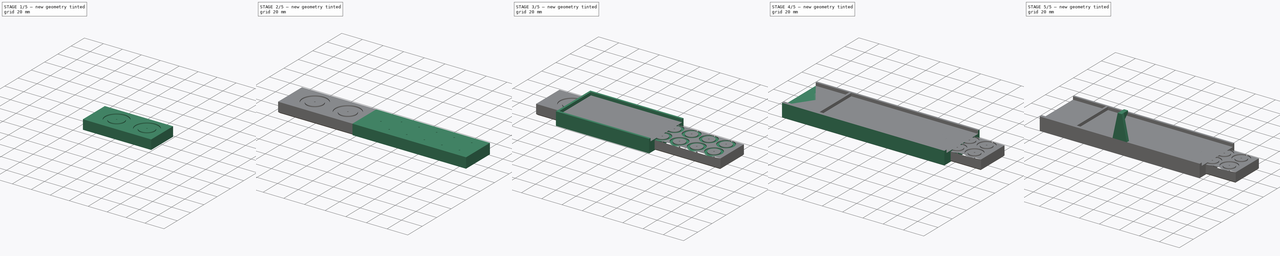
[diagram: build sequence overview — one tinted view per stage of 5, left to right]
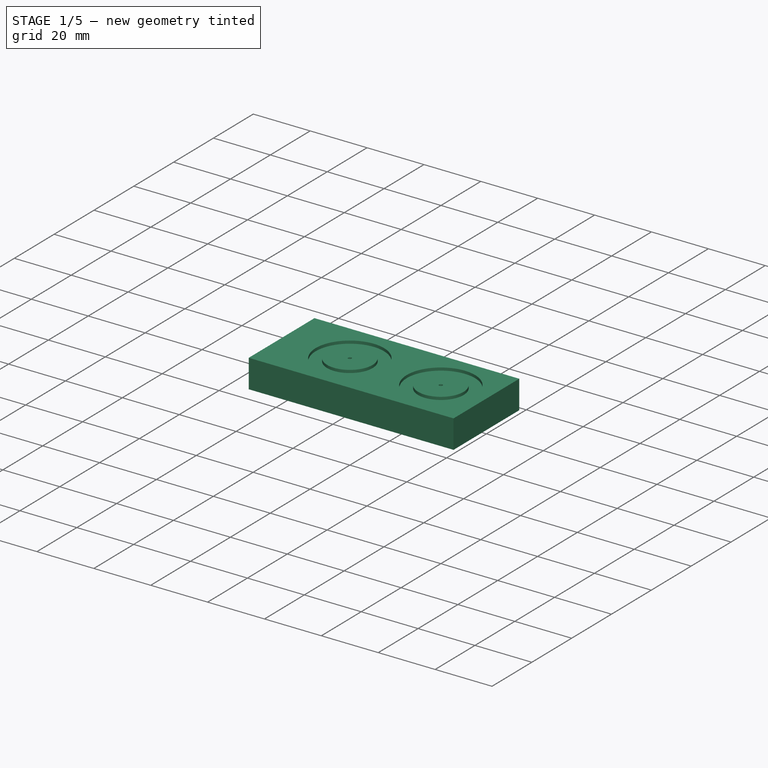
[diagram: stage 1 of 5 — iso view after this stage's code; geometry added in this stage tinted green]
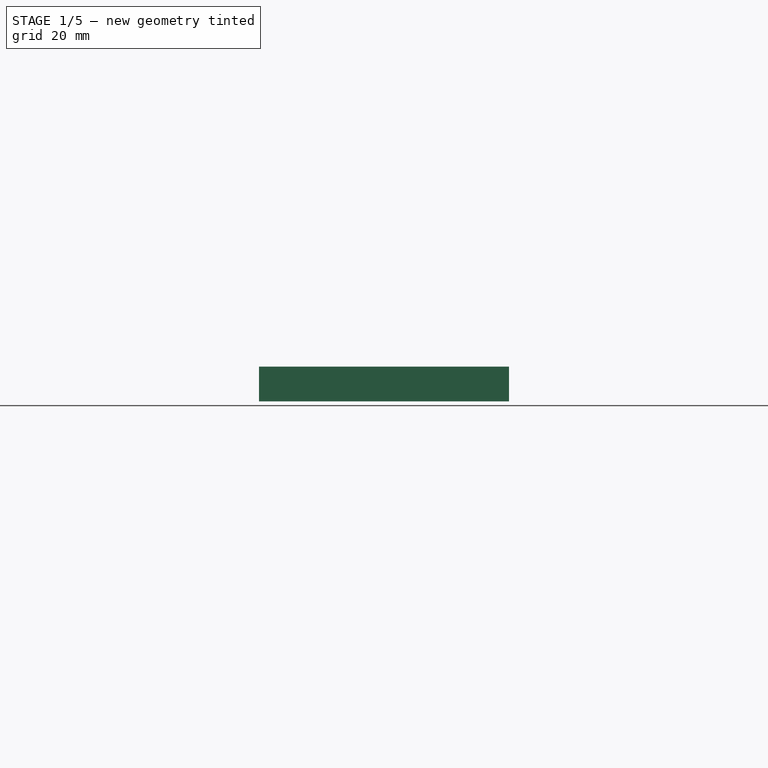
[diagram: stage 1 of 5 — front view after this stage's code; geometry added in this stage tinted green]
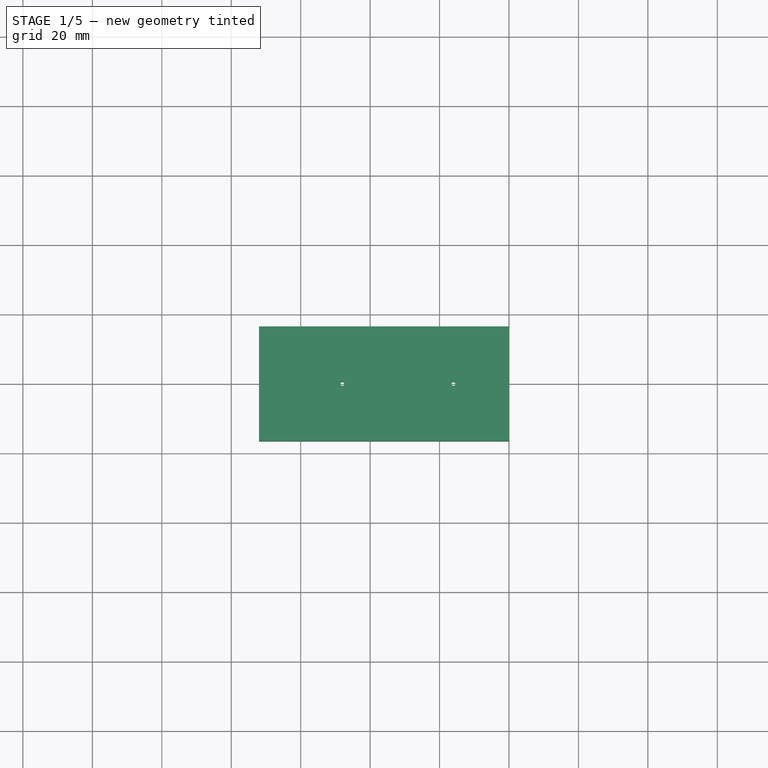
[diagram: stage 1 of 5 — top view after this stage's code; geometry added in this stage tinted green]
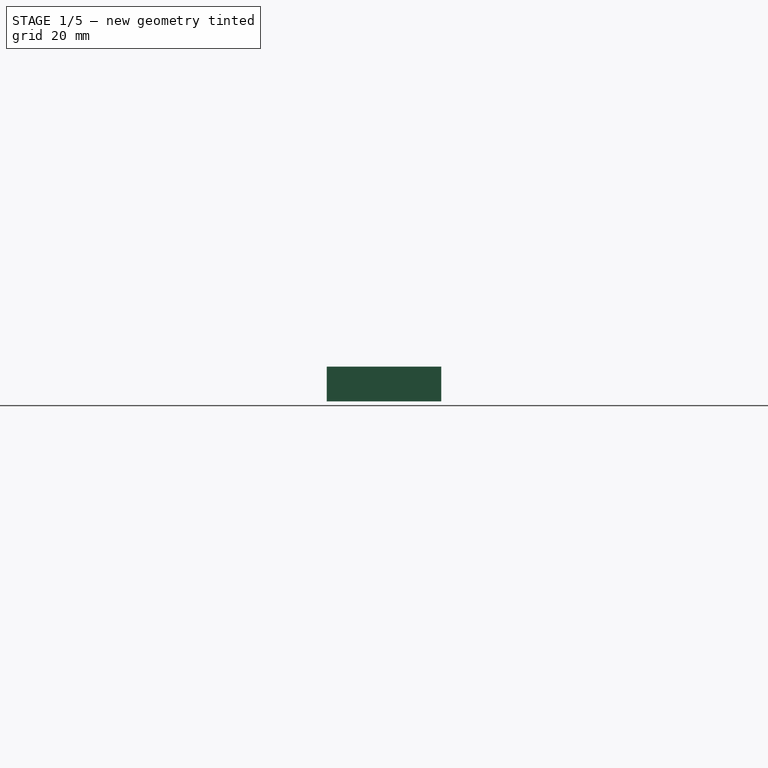
[diagram: stage 1 of 5 — right view after this stage's code; geometry added in this stage tinted green]
FCSTD DOCUMENT  (FreeCAD 1.0R39285 (Git))
Label: AuxPower1U-Template
License: All rights reserved
LicenseURL: https://en.wikipedia.org/wiki/All_rights_reserved
objects: Sketcher::SketchObject×14, PartDesign::Pad×8, PartDesign::Pocket×6, PartDesign::Body×4, PartDesign::Chamfer×2
note: 80 computed .brp shape members not serialized (recipe doc carries the construction recipe); baked Part::Feature solids carry a one-line shape summary decoded from their .brp

FEATURE [Sketcher::SketchObject] Sketch006  label="AcBlockSketch"
  ArcFitTolerance = 1e-06
  AttachmentSupport = -> [XY_Plane002]
  FullyConstrained = true
  MakeInternals = false
  MapMode = 5
  sketch-geometry (13):
    g0: LineSegment StartX=0 StartY=16.5 StartZ=0 EndX=-72 EndY=16.5 EndZ=0
    g1: LineSegment StartX=-72 StartY=16.5 StartZ=0 EndX=-72 EndY=-16.5 EndZ=0
    g2: LineSegment StartX=-72 StartY=-16.5 StartZ=0 EndX=0 EndY=-16.5 EndZ=0
    g3: LineSegment StartX=0 StartY=-16.5 StartZ=0 EndX=0 EndY=16.5 EndZ=0
    g4: LineSegment [constr] StartX=0 StartY=0 StartZ=0 EndX=-16 EndY=0 EndZ=0
    g5: LineSegment [constr] StartX=-16 StartY=0 StartZ=0 EndX=-48 EndY=0 EndZ=0
    g6: Circle [constr] CenterX=-16 CenterY=0 CenterZ=0 NormalX=0 NormalY=0 NormalZ=1 AngleXU=0 Radius=12
    g7: Circle [constr] CenterX=-16 CenterY=0 CenterZ=0 NormalX=0 NormalY=0 NormalZ=1 AngleXU=0 Radius=8
    g8: Circle CenterX=-16 CenterY=0 CenterZ=0 NormalX=0 NormalY=0 NormalZ=1 AngleXU=0 Radius=0.6
    g9: Circle [constr] CenterX=-48 CenterY=0 CenterZ=0 NormalX=0 NormalY=0 NormalZ=1 AngleXU=0 Radius=12
    g10: Circle [constr] CenterX=-48 CenterY=0 CenterZ=0 NormalX=0 NormalY=0 NormalZ=1 AngleXU=0 Radius=8
    g11: Circle CenterX=-48 CenterY=0 CenterZ=0 NormalX=0 NormalY=0 NormalZ=1 AngleXU=0 Radius=0.6
    g12: LineSegment [constr] StartX=-48 StartY=0 StartZ=0 EndX=-72 EndY=0 EndZ=0
  constraints (32):
    c: Coincident(g0,g1)
    c: Coincident(g1,g2)
    c: Coincident(g2,g3)
    c: Coincident(g3,g0)
    c: Horizontal(g0)
    c: Horizontal(g2)
    c: Vertical(g1)
    c: Vertical(g3)
    c: Symmetric(g0,g2,g-1)
    c: DistanceY(g3,g3) = 33
    c: Distance(g4) = 16
    c: Coincident(g4,g-1)
    c: PointOnObject(g4,g-1)
    c: Distance(g5) = 32
    c: Coincident(g5,g4)
    c: PointOnObject(g5,g-1)
    c: Diameter(g6) = 24
    c: Coincident(g6,g4)
    c: Diameter(g7) = 16
    c: Coincident(g7,g4)
    c: Coincident(g4,g8)
    c: Diameter(g8) = 1.2
    c: Coincident(g9,g5)
    c: Coincident(g10,g5)
    c: Coincident(g11,g5)
    c: Equal(g11,g8)
    c: Equal(g7,g10)
    c: Equal(g9,g6)
    c: Coincident(g12,g5)
    c: PointOnObject(g12,g-1)
    c: Vertical(g12,g1)
    c: DistanceX(g12,g12) = 24
FEATURE [PartDesign::Pad] Pad006  label="AcBlockPad"
  Direction = (0,0,1)
  Length = 10
  Length2 = 10
  Profile = -> Sketch006
  ReferenceAxis = -> Sketch006 [N_Axis]
  Refine = true
  Suppressed = false
  Type = 0
FEATURE [PartDesign::Body] Body001  label="Oled"
  AllowCompound = false
  Group = -> [Sketch004,Pad004,Sketch005,Pad005,Sketch011,Pocket003]
  Origin = -> Origin001
  Placement = pos=(50,-50,0) rot=(0,0,1;0rad)
  Tip = -> Pocket003
FEATURE [Sketcher::SketchObject] Sketch012  label="AcClearanceSketch"
  ArcFitTolerance = 1e-06
  AttachmentSupport = -> [Pad006]
  ExternalGeometry = -> [Pad006]
  FullyConstrained = true
  MakeInternals = false
  MapMode = 5
  Placement = pos=(0,0,10) rot=(0,0,1;0rad)
  sketch-geometry (4):
    g0: Circle CenterX=-16 CenterY=0 CenterZ=0 NormalX=0 NormalY=0 NormalZ=1 AngleXU=0 Radius=12
    g1: Circle CenterX=-16 CenterY=0 CenterZ=0 NormalX=0 NormalY=0 NormalZ=1 AngleXU=0 Radius=8
    g2: Circle CenterX=-48 CenterY=0 CenterZ=0 NormalX=0 NormalY=0 NormalZ=1 AngleXU=0 Radius=8
    g3: Circle CenterX=-48 CenterY=0 CenterZ=0 NormalX=0 NormalY=0 NormalZ=1 AngleXU=0 Radius=12
  constraints (8):
    c: Diameter(g0) = 24
    c: Coincident(g0,g-4)
    c: Diameter(g1) = 16
    c: Coincident(g1,g0)
    c: Coincident(g2,g-3)
    c: Coincident(g3,g2)
    c: Equal(g3,g0)
    c: Equal(g1,g2)
FEATURE [PartDesign::Pocket] Pocket004  label="AcClearancePocket"
  BaseFeature = -> Pad006
  Direction = (0,0,-1)
  Length = 1
  Length2 = 5
  Profile = -> Sketch012
  ReferenceAxis = -> Sketch012 [N_Axis]
  Refine = true
  Suppressed = false
  Type = 0
FEATURE [PartDesign::Body] Body003  label="DC"
  AllowCompound = false
  Group = -> [Sketch007,Pad007,Sketch008,Pocket,Sketch013,Pocket005,Chamfer]
  Origin = -> Origin003
  Placement = pos=(50,100,0) rot=(0,0,1;0rad)
  Tip = -> Chamfer
FEATURE [Sketcher::SketchObject] Sketch014  label="AcScrewKeepoutSketch"
  ArcFitTolerance = 1e-06
  AttachmentSupport = -> [Pocket004]
  FullyConstrained = true
  MakeInternals = false
  MapMode = 5
  Placement = pos=(-72,0,0) rot=(0.57735,-0.57735,-0.57735;2.0944rad)
  sketch-geometry (4):
    g0: LineSegment StartX=5 StartY=0 StartZ=0 EndX=5 EndY=4 EndZ=0
    g1: LineSegment StartX=5 StartY=4 StartZ=0 EndX=-5 EndY=4 EndZ=0
    g2: LineSegment StartX=-5 StartY=4 StartZ=0 EndX=-5 EndY=0 EndZ=0
    g3: LineSegment StartX=-5 StartY=0 StartZ=0 EndX=5 EndY=0 EndZ=0
  constraints (11):
    c: Coincident(g0,g1)
    c: Coincident(g1,g2)
    c: Coincident(g2,g3)
    c: Coincident(g3,g0)
    c: Vertical(g0)
    c: Vertical(g2)
    c: Horizontal(g1)
    c: Horizontal(g3)
    c: Distance(g0,g2) = 10
    c: Distance(g1,g3) = 4
    c: Symmetric(g2,g0,g-1)
FEATURE [PartDesign::Pocket] Pocket006  label="AcScrewKeepoutPocket"
  BaseFeature = -> Pocket004
  Direction = (1,0,0)
  Length = 8
  Length2 = 5
  Profile = -> Sketch014
  ReferenceAxis = -> Sketch014 [N_Axis]
  Refine = true
  Suppressed = false
  Type = 0
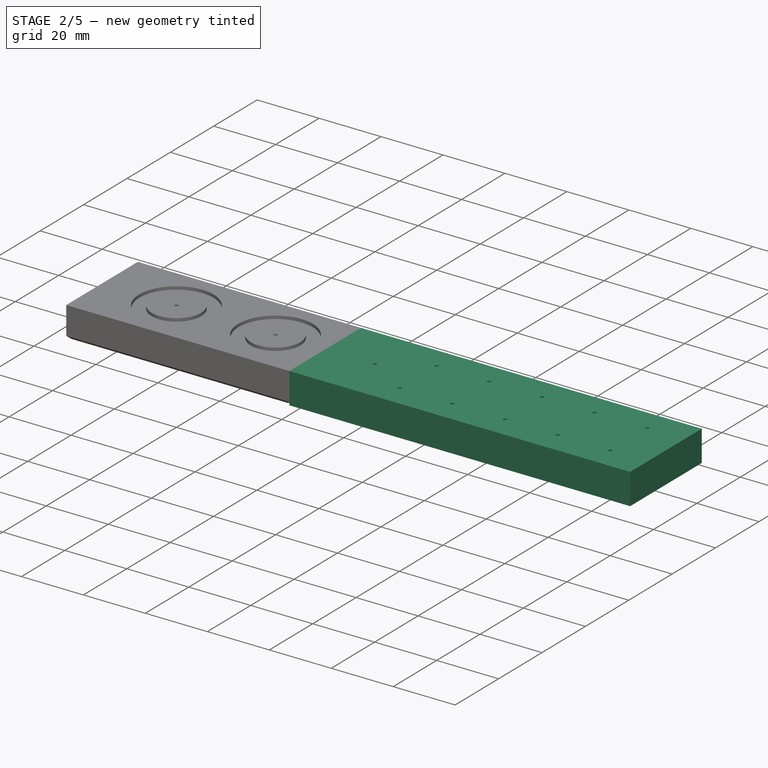
[diagram: stage 2 of 5 — iso view after this stage's code; geometry added in this stage tinted green]
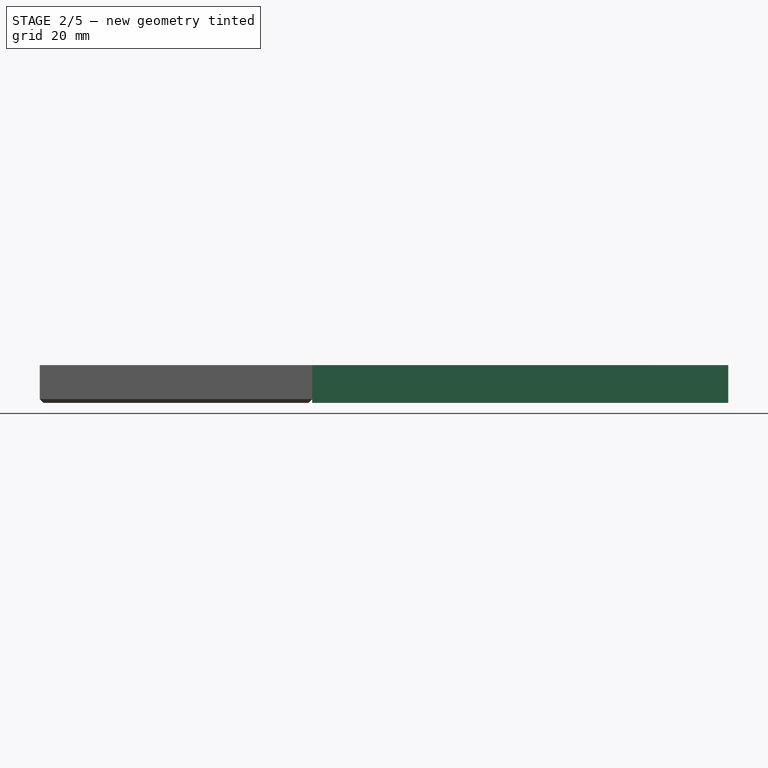
[diagram: stage 2 of 5 — front view after this stage's code; geometry added in this stage tinted green]
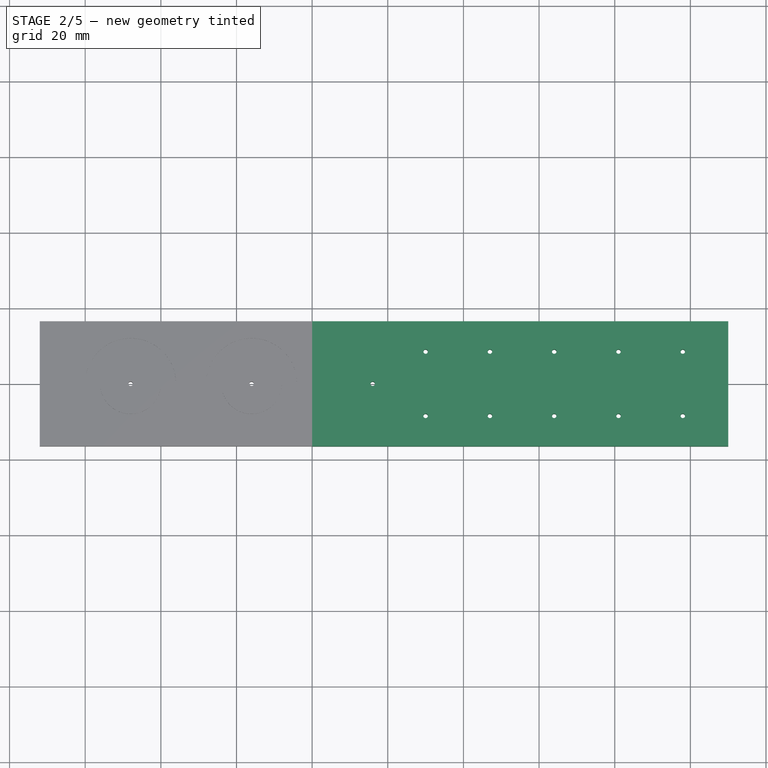
[diagram: stage 2 of 5 — top view after this stage's code; geometry added in this stage tinted green]
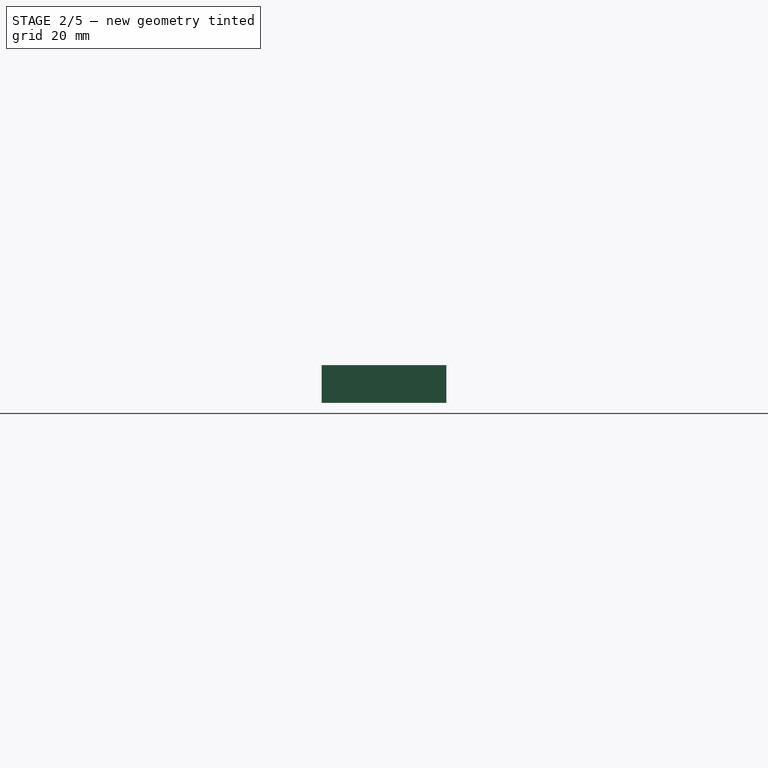
[diagram: stage 2 of 5 — right view after this stage's code; geometry added in this stage tinted green]
FEATURE [Sketcher::SketchObject] Sketch007  label="DcBlockSketch"
  ArcFitTolerance = 1e-06
  AttachmentSupport = -> [XY_Plane003]
  FullyConstrained = true
  MakeInternals = false
  MapMode = 5
  sketch-geometry (48):
    g0: LineSegment StartX=0 StartY=16.5 StartZ=0 EndX=0 EndY=-16.5 EndZ=0
    g1: LineSegment StartX=0 StartY=-16.5 StartZ=0 EndX=110 EndY=-16.5 EndZ=0
    g2: LineSegment StartX=110 StartY=-16.5 StartZ=0 EndX=110 EndY=16.5 EndZ=0
    g3: LineSegment StartX=110 StartY=16.5 StartZ=0 EndX=0 EndY=16.5 EndZ=0
    g4: LineSegment [constr] StartX=0 StartY=0 StartZ=0 EndX=16 EndY=0 EndZ=0
    g5: Circle [constr] CenterX=16 CenterY=0 CenterZ=0 NormalX=0 NormalY=0 NormalZ=1 AngleXU=0 Radius=6
    g6: Circle [constr] CenterX=16 CenterY=0 CenterZ=0 NormalX=0 NormalY=0 NormalZ=1 AngleXU=0 Radius=5
    g7: Circle CenterX=16 CenterY=0 CenterZ=0 NormalX=0 NormalY=0 NormalZ=1 AngleXU=0 Radius=0.6
    g8: LineSegment [constr] StartX=16 StartY=0 StartZ=0 EndX=30 EndY=0 EndZ=0
    g9: LineSegment [constr] StartX=30 StartY=8.5 StartZ=0 EndX=30 EndY=-8.5 EndZ=0
    g10: LineSegment [constr] StartX=30 StartY=0 StartZ=0 EndX=47 EndY=0 EndZ=0
    g11: LineSegment [constr] StartX=47 StartY=0 StartZ=0 EndX=64 EndY=0 EndZ=0
    g12: LineSegment [constr] StartX=64 StartY=0 StartZ=0 EndX=81 EndY=0 EndZ=0
    g13: LineSegment [constr] StartX=81 StartY=0 StartZ=0 EndX=98 EndY=0 EndZ=0
    g14: LineSegment [constr] StartX=47 StartY=8.5 StartZ=0 EndX=47 EndY=-8.5 EndZ=0
    g15: LineSegment [constr] StartX=64 StartY=8.5 StartZ=0 EndX=64 EndY=-8.5 EndZ=0
    g16: LineSegment [constr] StartX=81 StartY=8.5 StartZ=0 EndX=81 EndY=-8.5 EndZ=0
    g17: LineSegment [constr] StartX=98 StartY=8.5 StartZ=0 EndX=98 EndY=-8.5 EndZ=0
    g18: Circle [constr] CenterX=30 CenterY=8.5 CenterZ=0 NormalX=0 NormalY=0 NormalZ=1 AngleXU=0 Radius=8
    g19: Circle [constr] CenterX=30 CenterY=-8.5 CenterZ=0 NormalX=0 NormalY=0 NormalZ=1 AngleXU=0 Radius=8
    g20: Circle [constr] CenterX=47 CenterY=8.5 CenterZ=0 NormalX=0 NormalY=0 NormalZ=1 AngleXU=0 Radius=8
    g21: Circle [constr] CenterX=47 CenterY=-8.5 CenterZ=0 NormalX=0 NormalY=0 NormalZ=1 AngleXU=0 Radius=8
    g22: Circle [constr] CenterX=64 CenterY=-8.5 CenterZ=0 NormalX=0 NormalY=0 NormalZ=1 AngleXU=0 Radius=8
    g23: Circle [constr] CenterX=64 CenterY=8.5 CenterZ=0 NormalX=0 NormalY=0 NormalZ=1 AngleXU=0 Radius=8
    g24: Circle [constr] CenterX=81 CenterY=8.5 CenterZ=0 NormalX=0 NormalY=0 NormalZ=1 AngleXU=0 Radius=8
    g25: Circle [constr] CenterX=98 CenterY=8.5 CenterZ=0 NormalX=0 NormalY=0 NormalZ=1 AngleXU=0 Radius=8
    g26: Circle [constr] CenterX=98 CenterY=-8.5 CenterZ=0 NormalX=0 NormalY=0 NormalZ=1 AngleXU=0 Radius=8
    g27: Circle [constr] CenterX=81 CenterY=-8.5 CenterZ=0 NormalX=0 NormalY=0 NormalZ=1 AngleXU=0 Radius=8
    g28: Circle [constr] CenterX=30 CenterY=8.5 CenterZ=0 NormalX=0 NormalY=0 NormalZ=1 AngleXU=0 Radius=5.5
    g29: Circle [constr] CenterX=47 CenterY=8.5 CenterZ=0 NormalX=0 NormalY=0 NormalZ=1 AngleXU=0 Radius=5.5
    g30: Circle [constr] CenterX=64 CenterY=8.5 CenterZ=0 NormalX=0 NormalY=0 NormalZ=1 AngleXU=0 Radius=5.5
    g31: Circle [constr] CenterX=81 CenterY=8.5 CenterZ=0 NormalX=0 NormalY=0 NormalZ=1 AngleXU=0 Radius=5.5
    g32: Circle [constr] CenterX=98 CenterY=8.5 CenterZ=0 NormalX=0 NormalY=0 NormalZ=1 AngleXU=0 Radius=5.5
    g33: Circle [constr] CenterX=98 CenterY=-8.5 CenterZ=0 NormalX=0 NormalY=0 NormalZ=1 AngleXU=0 Radius=5.5
    g34: Circle [constr] CenterX=81 CenterY=-8.5 CenterZ=0 NormalX=0 NormalY=0 NormalZ=1 AngleXU=0 Radius=5.5
    g35: Circle [constr] CenterX=64 CenterY=-8.5 CenterZ=0 NormalX=0 NormalY=0 NormalZ=1 AngleXU=0 Radius=5.5
    g36: Circle [constr] CenterX=47 CenterY=-8.5 CenterZ=0 NormalX=0 NormalY=0 NormalZ=1 AngleXU=0 Radius=5.5
    g37: Circle [constr] CenterX=30 CenterY=-8.5 CenterZ=0 NormalX=0 NormalY=0 NormalZ=1 AngleXU=0 Radius=5.5
    g38: Circle CenterX=30 CenterY=8.5 CenterZ=0 NormalX=0 NormalY=0 NormalZ=1 AngleXU=0 Radius=0.6
    g39: Circle CenterX=47 CenterY=8.5 CenterZ=0 NormalX=0 NormalY=0 NormalZ=1 AngleXU=0 Radius=0.6
    g40: Circle CenterX=64 CenterY=8.5 CenterZ=0 NormalX=0 NormalY=0 NormalZ=1 AngleXU=0 Radius=0.6
    g41: Circle CenterX=81 CenterY=8.5 CenterZ=0 NormalX=0 NormalY=0 NormalZ=1 AngleXU=0 Radius=0.6
    g42: Circle CenterX=98 CenterY=8.5 CenterZ=0 NormalX=0 NormalY=0 NormalZ=1 AngleXU=0 Radius=0.6
    g43: Circle CenterX=30 CenterY=-8.5 CenterZ=0 NormalX=0 NormalY=0 NormalZ=1 AngleXU=0 Radius=0.6
    g44: Circle CenterX=47 CenterY=-8.5 CenterZ=0 NormalX=0 NormalY=0 NormalZ=1 AngleXU=0 Radius=0.6
    g45: Circle CenterX=64 CenterY=-8.5 CenterZ=0 NormalX=0 NormalY=0 NormalZ=1 AngleXU=0 Radius=0.6
    g46: Circle CenterX=81 CenterY=-8.5 CenterZ=0 NormalX=0 NormalY=0 NormalZ=1 AngleXU=0 Radius=0.6
    g47: Circle CenterX=98 CenterY=-8.5 CenterZ=0 NormalX=0 NormalY=0 NormalZ=1 AngleXU=0 Radius=0.6
  constraints (111):
    c: Coincident(g0,g1)
    c: Coincident(g1,g2)
    c: Coincident(g2,g3)
    c: Coincident(g3,g0)
    c: Vertical(g0)
    c: Vertical(g2)
    c: Horizontal(g1)
    c: Horizontal(g3)
    c: Symmetric(g0,g0,g-1)
    c: DistanceY(g0,g0) = 33
    c: Coincident(g4,g-1)
    c: PointOnObject(g4,g-1)
    c: DistanceX(g4,g4) = 16
    c: Diameter(g5) = 12
    c: Coincident(g5,g4)
    c: Diameter(g6) = 10
    c: Coincident(g6,g4)
    c: Coincident(g8,g7)
    c: PointOnObject(g8,g-1)
    c: Horizontal(g8)
    c: Vertical(g4,g7)
    c: DistanceX(g8,g8) = 14
    c: Vertical(g9)
    c: Symmetric(g9,g9,g8)
    c: Coincident(g10,g8)
    c: PointOnObject(g10,g-1)
    c: Coincident(g11,g10)
    c: PointOnObject(g11,g-1)
    c: Coincident(g12,g11)
    c: PointOnObject(g12,g-1)
    c: Coincident(g13,g12)
    c: PointOnObject(g13,g-1)
    c: Vertical(g14)
    c: Vertical(g15)
    c: Vertical(g16)
    c: Vertical(g17)
    c: Equal(g10,g11)
    c: Equal(g11,g12)
    c: Equal(g12,g13)
    c: Symmetric(g14,g14,g10)
    c: Equal(g14,g9)
    c: Symmetric(g15,g15,g11)
    c: Equal(g15,g14)
    c: Symmetric(g16,g16,g12)
    c: Equal(g16,g15)
    c: Symmetric(g17,g17,g13)
    c: Equal(g17,g16)
    c: DistanceY(g17,g17) = 17
    c: Diameter(g18) = 16
    c: Coincident(g18,g9)
    c: Coincident(g19,g9)
    c: Equal(g19,g18)
    c: Coincident(g20,g14)
    c: Coincident(g21,g14)
    c: Coincident(g22,g15)
    c: Coincident(g23,g15)
    c: Coincident(g24,g16)
    c: Coincident(g25,g17)
    c: Coincident(g26,g17)
    c: Coincident(g27,g16)
    c: Equal(g26,g27)
    c: Equal(g27,g22)
    c: Equal(g22,g21)
    c: Equal(g21,g19)
    c: Equal(g20,g18)
    c: Equal(g18,g23)
    c: Equal(g23,g24)
    c: Equal(g24,g25)
    c: Equal(g10,g17)
    c: Diameter(g28) = 11
    c: Coincident(g28,g9)
    c: Coincident(g29,g14)
    c: Coincident(g30,g15)
    c: Coincident(g31,g16)
    c: Coincident(g32,g17)
    c: Coincident(g33,g17)
    c: Coincident(g34,g16)
    c: Coincident(g35,g15)
    c: Coincident(g36,g14)
    c: Coincident(g37,g9)
    c: Equal(g28,g37)
    c: Equal(g37,g29)
    c: Equal(g29,g30)
    c: Equal(g30,g31)
    c: Equal(g31,g32)
    c: Equal(g37,g36)
    c: Equal(g36,g35)
    c: Equal(g35,g34)
    c: Equal(g34,g33)
    c: Diameter(g38) = 1.2
    c: Coincident(g38,g9)
    c: Coincident(g39,g14)
    c: Coincident(g40,g15)
    c: Coincident(g41,g16)
    c: Coincident(g42,g17)
    c: Equal(g42,g41)
    c: Equal(g41,g40)
    c: Equal(g40,g39)
    c: Equal(g39,g38)
    c: Coincident(g43,g9)
    c: Coincident(g44,g14)
    c: Coincident(g45,g15)
    c: Coincident(g46,g16)
    c: Coincident(g47,g17)
    c: Equal(g47,g46)
    c: Equal(g46,g45)
    c: Equal(g45,g44)
    c: Equal(g44,g43)
    c: Equal(g38,g43)
    c: Diameter(g7) = 1.2
    c: DistanceX(g1,g1) = 110
FEATURE [PartDesign::Pad] Pad007  label="DcBlockPad"
  Direction = (0,0,1)
  Length = 10
  Length2 = 10
  Profile = -> Sketch007
  ReferenceAxis = -> Sketch007 [N_Axis]
  Refine = true
  Suppressed = false
  Type = 0
FEATURE [Sketcher::SketchObject] Sketch008  label="DcScrewKeepoutSketch"
  ArcFitTolerance = 1e-06
  AttachmentSupport = -> [Pad007]
  FullyConstrained = true
  MakeInternals = false
  MapMode = 5
  Placement = pos=(0,0,0) rot=(0.57735,-0.57735,-0.57735;2.0944rad)
  sketch-geometry (4):
    g0: LineSegment StartX=-4 StartY=0 StartZ=0 EndX=4 EndY=0 EndZ=0
    g1: LineSegment StartX=4 StartY=0 StartZ=0 EndX=4 EndY=4 EndZ=0
    g2: LineSegment StartX=4 StartY=4 StartZ=0 EndX=-4 EndY=4 EndZ=0
    g3: LineSegment StartX=-4 StartY=4 StartZ=0 EndX=-4 EndY=0 EndZ=0
  constraints (11):
    c: Coincident(g0,g1)
    c: Coincident(g1,g2)
    c: Coincident(g2,g3)
    c: Coincident(g3,g0)
    c: Horizontal(g0)
    c: Horizontal(g2)
    c: Vertical(g1)
    c: Vertical(g3)
    c: DistanceY(g1,g1) = 4
    c: Symmetric(g0,g0,g-1)
    c: DistanceX(g0,g0) = 8
FEATURE [PartDesign::Pocket] Pocket  label="DcScrewKeepoutPocket"
  BaseFeature = -> Pad007
  Direction = (1,0,0)
  Length = 8
  Length2 = 5
  Profile = -> Sketch008
  ReferenceAxis = -> Sketch008 [N_Axis]
  Refine = true
  Suppressed = false
  Type = 0
FEATURE [PartDesign::Chamfer] Chamfer001
  Angle = 45
  Base = -> Pocket006 [Edge12,Edge8,Edge15,Edge6,Edge3]
  BaseFeature = -> Pocket006
  ChamferType = 0
  FlipDirection = false
  Refine = true
  Size = 1
  Size2 = 1
  SupportTransform = false
  Suppressed = false
  UseAllEdges = false
FEATURE [PartDesign::Body] Body002  label="AC"
  AllowCompound = false
  Group = -> [Sketch006,Pad006,Sketch014,Sketch012,Pocket004,Pocket006,Chamfer001]
  Origin = -> Origin002
  Placement = pos=(-50,50,0) rot=(0,0,1;0rad)
  Tip = -> Chamfer001
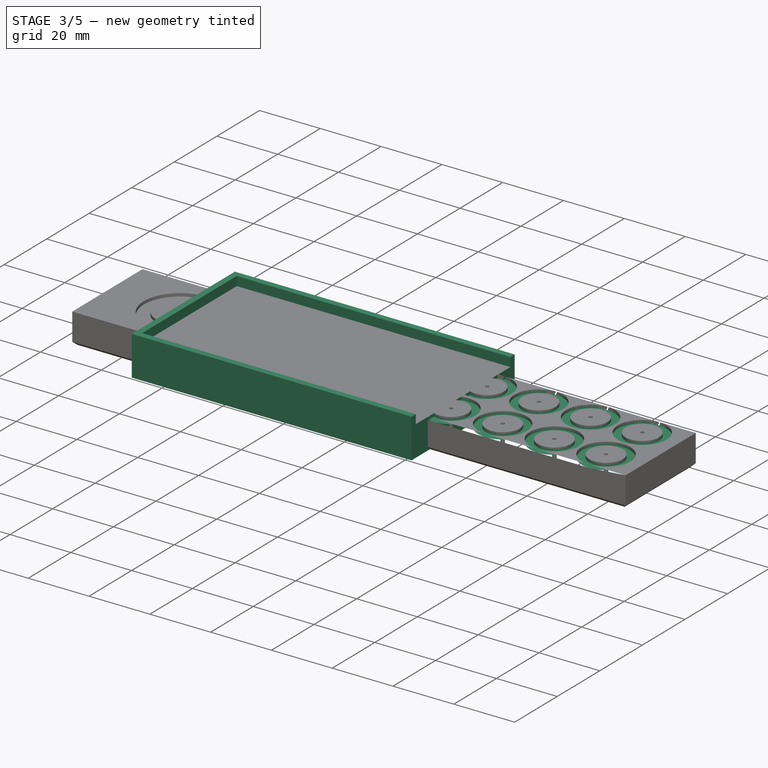
[diagram: stage 3 of 5 — iso view after this stage's code; geometry added in this stage tinted green]
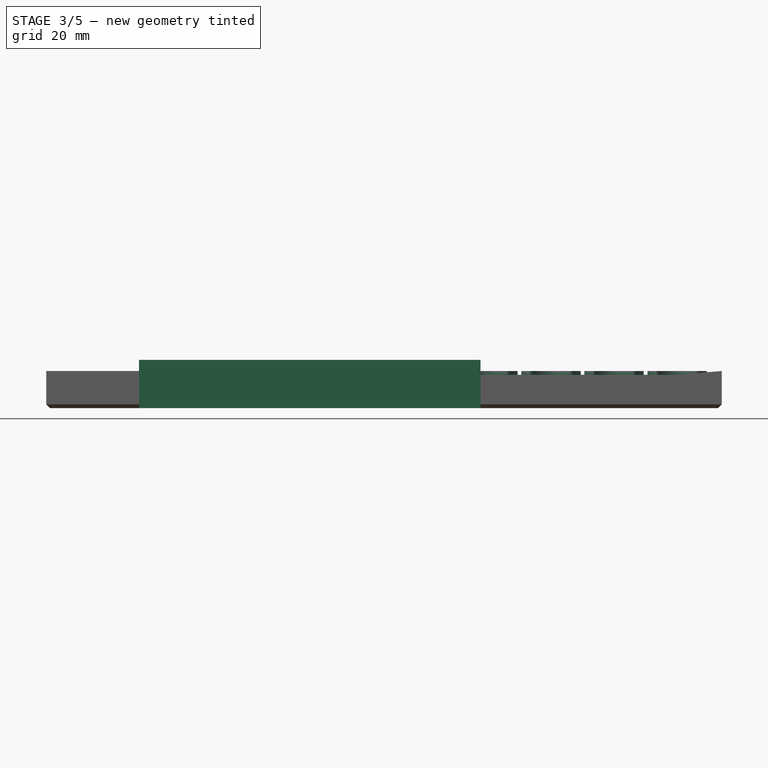
[diagram: stage 3 of 5 — front view after this stage's code; geometry added in this stage tinted green]
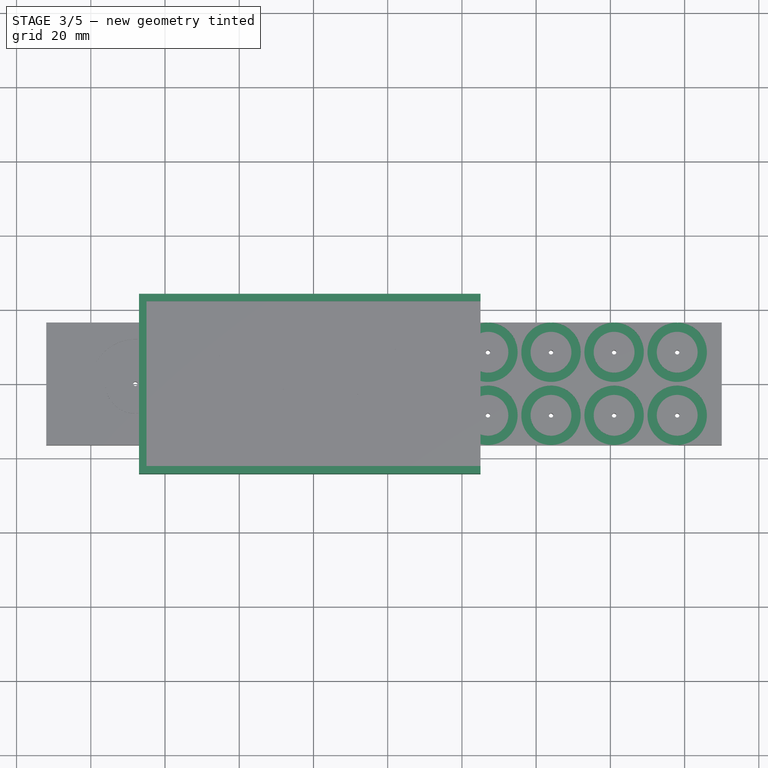
[diagram: stage 3 of 5 — top view after this stage's code; geometry added in this stage tinted green]
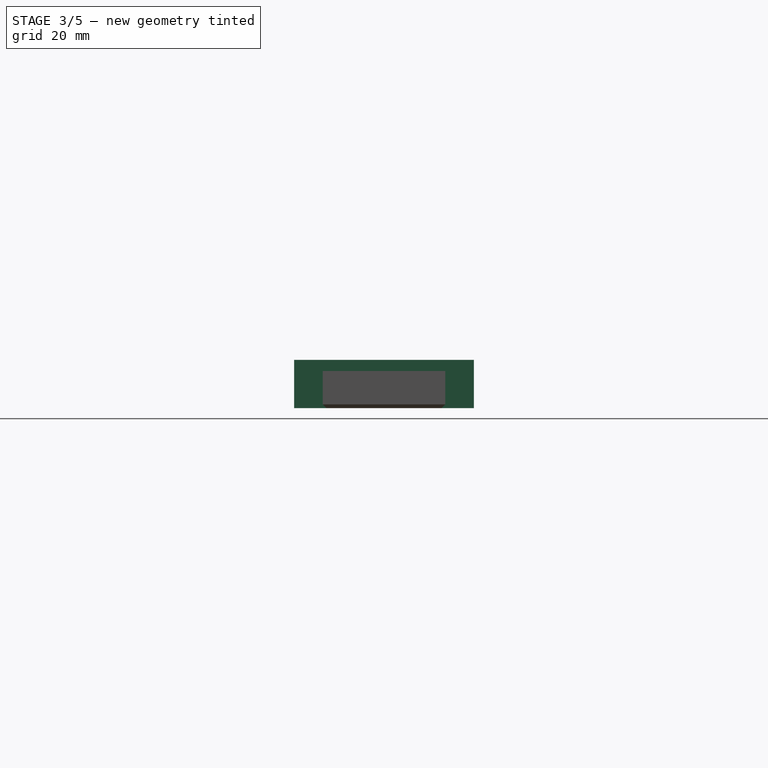
[diagram: stage 3 of 5 — right view after this stage's code; geometry added in this stage tinted green]
FEATURE [Sketcher::SketchObject] Sketch004  label="OledBlockSketch"
  ArcFitTolerance = 1e-06
  AttachmentSupport = -> [XY_Plane001]
  FullyConstrained = true
  MakeInternals = false
  MapMode = 5
  sketch-geometry (8):
    g0: LineSegment StartX=-45 StartY=22.225 StartZ=0 EndX=-45 EndY=-22.225 EndZ=0
    g1: LineSegment StartX=-45 StartY=-22.225 StartZ=0 EndX=45 EndY=-22.225 EndZ=0
    g2: LineSegment StartX=45 StartY=-22.225 StartZ=0 EndX=45 EndY=22.225 EndZ=0
    g3: LineSegment StartX=45 StartY=22.225 StartZ=0 EndX=-45 EndY=22.225 EndZ=0
    g4: LineSegment [constr] StartX=-45 StartY=22.225 StartZ=0 EndX=25 EndY=0 EndZ=0
    g5: LineSegment [constr] StartX=25 StartY=0 StartZ=0 EndX=-45 EndY=-22.225 EndZ=0
    g6: Circle [constr] CenterX=25 CenterY=0 CenterZ=0 NormalX=0 NormalY=0 NormalZ=1 AngleXU=0 Radius=8
    g7: Circle CenterX=25 CenterY=0 CenterZ=0 NormalX=0 NormalY=0 NormalZ=1 AngleXU=0 Radius=0.6
  constraints (20):
    c: Coincident(g0,g1)
    c: Coincident(g1,g2)
    c: Coincident(g2,g3)
    c: Coincident(g3,g0)
    c: Vertical(g0)
    c: Vertical(g2)
    c: Horizontal(g1)
    c: Horizontal(g3)
    c: Symmetric(g1,g0,g-1)
    c: DistanceX(g1,g1) = 90
    c: DistanceY(g0,g0) = 44.45
    c: Coincident(g4,g0)
    c: PointOnObject(g4,g-1)
    c: Coincident(g5,g4)
    c: Coincident(g5,g0)
    c: Coincident(g6,g4)
    c: Diameter(g6) = 16
    c: Diameter(g7) = 1.2
    c: Coincident(g7,g4)
    c: DistanceX(g0,g4) = 70
FEATURE [PartDesign::Pad] Pad004  label="OledBlockPad"
  Direction = (0,0,1)
  Length = 10
  Length2 = 10
  Profile = -> Sketch004
  ReferenceAxis = -> Sketch004 [N_Axis]
  Refine = true
  Suppressed = false
  Type = 0
FEATURE [Sketcher::SketchObject] Sketch005  label="OledSideSketch"
  ArcFitTolerance = 1e-06
  AttachmentSupport = -> [XY_Plane001]
  ExternalGeometry = -> [Pad004]
  FullyConstrained = true
  MakeInternals = false
  MapMode = 5
  sketch-geometry (9):
    g0: LineSegment StartX=45 StartY=-22.225 StartZ=0 EndX=45 EndY=-24.225 EndZ=0
    g1: LineSegment StartX=45 StartY=-24.225 StartZ=0 EndX=-47 EndY=-24.225 EndZ=0
    g2: LineSegment StartX=-47 StartY=-24.225 StartZ=0 EndX=-47 EndY=24.225 EndZ=0
    g3: LineSegment StartX=45 StartY=22.225 StartZ=0 EndX=45 EndY=24.225 EndZ=0
    g4: LineSegment StartX=-47 StartY=24.225 StartZ=0 EndX=45 EndY=24.225 EndZ=0
    g5: LineSegment StartX=45 StartY=22.225 StartZ=0 EndX=-45 EndY=22.225 EndZ=0
    g6: LineSegment StartX=-45 StartY=22.225 StartZ=0 EndX=-45 EndY=-22.225 EndZ=0
    g7: LineSegment StartX=-45 StartY=-22.225 StartZ=0 EndX=45 EndY=-22.225 EndZ=0
    g8: LineSegment [constr] StartX=-45 StartY=22.225 StartZ=0 EndX=-47 EndY=22.225 EndZ=0
  constraints (23):
    c: Coincident(g0,g-4)
    c: Vertical(g0)
    c: Coincident(g1,g0)
    c: Horizontal(g1)
    c: Coincident(g2,g1)
    c: Vertical(g2)
    c: Coincident(g3,g-3)
    c: Vertical(g3)
    c: Equal(g3,g0)
    c: DistanceY(g0,g0) = 2
    c: Horizontal(g3,g2)
    c: Coincident(g4,g2)
    c: Coincident(g4,g3)
    c: Coincident(g5,g3)
    c: Coincident(g5,g-3)
    c: Coincident(g6,g5)
    c: Coincident(g6,g-4)
    c: Coincident(g7,g6)
    c: Coincident(g7,g0)
    c: Coincident(g8,g5)
    c: PointOnObject(g8,g2)
    c: Horizontal(g8)
    c: Equal(g8,g0)
FEATURE [PartDesign::Pad] Pad005  label="OledSidePad"
  BaseFeature = -> Pad004
  Direction = (0,0,1)
  Length = 13
  Length2 = 10
  Profile = -> Sketch005
  ReferenceAxis = -> Sketch005 [N_Axis]
  Refine = true
  Suppressed = false
  Type = 0
FEATURE [Sketcher::SketchObject] Sketch013  label="DcClearanceSketch"
  ArcFitTolerance = 1e-06
  AttachmentSupport = -> [Pocket]
  ExternalGeometry = -> [Pocket]
  FullyConstrained = true
  MakeInternals = false
  MapMode = 5
  Placement = pos=(0,0,10) rot=(0,0,1;0rad)
  sketch-geometry (22):
    g0: Circle CenterX=16 CenterY=0 CenterZ=0 NormalX=0 NormalY=0 NormalZ=1 AngleXU=0 Radius=5
    g1: Circle CenterX=16 CenterY=0 CenterZ=0 NormalX=0 NormalY=0 NormalZ=1 AngleXU=0 Radius=6
    g2: Circle CenterX=98 CenterY=8.5 CenterZ=0 NormalX=0 NormalY=0 NormalZ=1 AngleXU=0 Radius=5.5
    g3: Circle CenterX=98 CenterY=-8.5 CenterZ=0 NormalX=0 NormalY=0 NormalZ=1 AngleXU=0 Radius=5.5
    g4: Circle CenterX=81 CenterY=-8.5 CenterZ=0 NormalX=0 NormalY=0 NormalZ=1 AngleXU=0 Radius=5.5
    g5: Circle CenterX=81 CenterY=8.5 CenterZ=0 NormalX=0 NormalY=0 NormalZ=1 AngleXU=0 Radius=5.5
    g6: Circle CenterX=64 CenterY=8.5 CenterZ=0 NormalX=0 NormalY=0 NormalZ=1 AngleXU=0 Radius=5.5
    g7: Circle CenterX=47 CenterY=8.5 CenterZ=0 NormalX=0 NormalY=0 NormalZ=1 AngleXU=0 Radius=5.5
    g8: Circle CenterX=30 CenterY=8.5 CenterZ=0 NormalX=0 NormalY=0 NormalZ=1 AngleXU=0 Radius=5.5
    g9: Circle CenterX=30 CenterY=-8.5 CenterZ=0 NormalX=0 NormalY=0 NormalZ=1 AngleXU=0 Radius=5.5
    g10: Circle CenterX=47 CenterY=-8.5 CenterZ=0 NormalX=0 NormalY=0 NormalZ=1 AngleXU=0 Radius=5.5
    g11: Circle CenterX=64 CenterY=-8.5 CenterZ=0 NormalX=0 NormalY=0 NormalZ=1 AngleXU=0 Radius=5.5
    g12: Circle CenterX=98 CenterY=8.5 CenterZ=0 NormalX=0 NormalY=0 NormalZ=1 AngleXU=0 Radius=8
    g13: Circle CenterX=98 CenterY=-8.5 CenterZ=0 NormalX=0 NormalY=0 NormalZ=1 AngleXU=0 Radius=8
    g14: Circle CenterX=81 CenterY=-8.5 CenterZ=0 NormalX=0 NormalY=0 NormalZ=1 AngleXU=0 Radius=8
    g15: Circle CenterX=81 CenterY=8.5 CenterZ=0 NormalX=0 NormalY=0 NormalZ=1 AngleXU=0 Radius=8
    g16: Circle CenterX=64 CenterY=8.5 CenterZ=0 NormalX=0 NormalY=0 NormalZ=1 AngleXU=0 Radius=8
    g17: Circle CenterX=64 CenterY=-8.5 CenterZ=0 NormalX=0 NormalY=0 NormalZ=1 AngleXU=0 Radius=8
    g18: Circle CenterX=47 CenterY=-8.5 CenterZ=0 NormalX=0 NormalY=0 NormalZ=1 AngleXU=0 Radius=8
    g19: Circle CenterX=30 CenterY=-8.5 CenterZ=0 NormalX=0 NormalY=0 NormalZ=1 AngleXU=0 Radius=8
    g20: Circle CenterX=30 CenterY=8.5 CenterZ=0 NormalX=0 NormalY=0 NormalZ=1 AngleXU=0 Radius=8
    g21: Circle CenterX=47 CenterY=8.5 CenterZ=0 NormalX=0 NormalY=0 NormalZ=1 AngleXU=0 Radius=8
  constraints (44):
    c: Diameter(g1) = 12
    c: Diameter(g0) = 10
    c: Coincident(g1,g0)
    c: Coincident(g0,g-3)
    c: Diameter(g2) = 11
    c: Coincident(g2,g-12)
    c: Coincident(g3,g-13)
    c: Coincident(g4,g-10)
    c: Coincident(g5,g-11)
    c: Coincident(g6,g-8)
    c: Coincident(g7,g-7)
    c: Coincident(g8,g-4)
    c: Coincident(g9,g-5)
    c: Coincident(g10,g-6)
    c: Coincident(g11,g-9)
    c: Equal(g3,g2)
    c: Equal(g2,g5)
    c: Equal(g5,g4)
    c: Equal(g4,g11)
    c: Equal(g11,g6)
    c: Equal(g6,g10)
    c: Equal(g10,g7)
    c: Equal(g7,g8)
    c: Equal(g8,g9)
    c: Diameter(g12) = 16
    c: Coincident(g12,g2)
    c: Coincident(g13,g3)
    c: Coincident(g14,g4)
    c: Coincident(g15,g5)
    c: Coincident(g16,g6)
    c: Coincident(g17,g11)
    c: Coincident(g18,g10)
    c: Coincident(g19,g9)
    c: Coincident(g20,g8)
    c: Coincident(g21,g7)
    c: Equal(g20,g21)
    c: Equal(g21,g16)
    c: Equal(g16,g15)
    c: Equal(g15,g12)
    c: Equal(g13,g14)
    c: Equal(g14,g17)
    c: Equal(g17,g18)
    c: Equal(g18,g19)
    c: Equal(g19,g12)
FEATURE [PartDesign::Pocket] Pocket005  label="DcClearancePocket"
  BaseFeature = -> Pocket
  Direction = (0,0,-1)
  Length = 1
  Length2 = 5
  Profile = -> Sketch013
  ReferenceAxis = -> Sketch013 [N_Axis]
  Refine = true
  Suppressed = false
  Type = 0
FEATURE [PartDesign::Chamfer] Chamfer
  Angle = 45
  Base = -> Pocket005 [Edge5,Edge1,Edge11,Edge10,Edge9]
  BaseFeature = -> Pocket005
  ChamferType = 0
  FlipDirection = false
  Refine = true
  Size = 1
  Size2 = 1
  SupportTransform = false
  Suppressed = false
  UseAllEdges = false
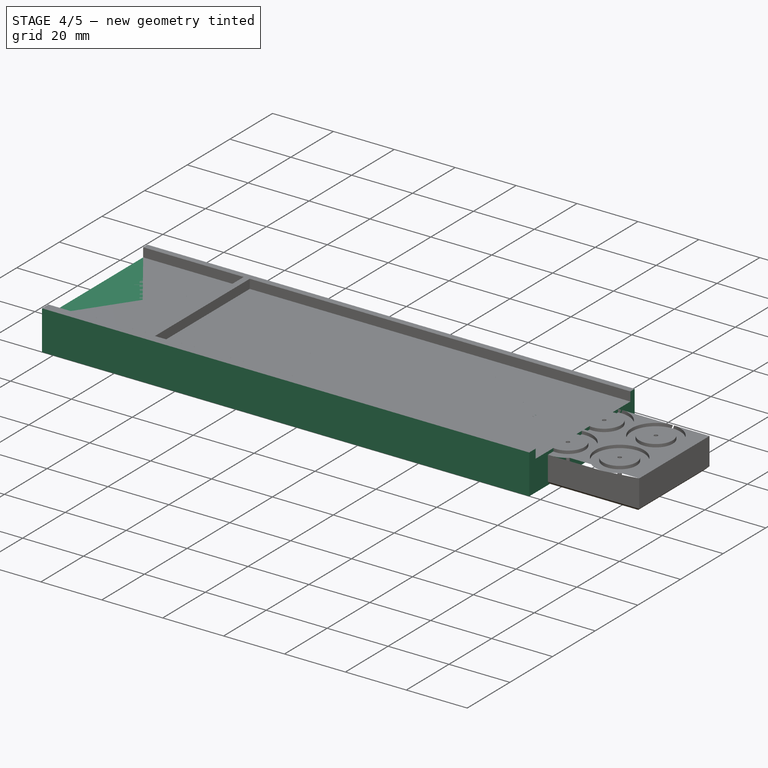
[diagram: stage 4 of 5 — iso view after this stage's code; geometry added in this stage tinted green]
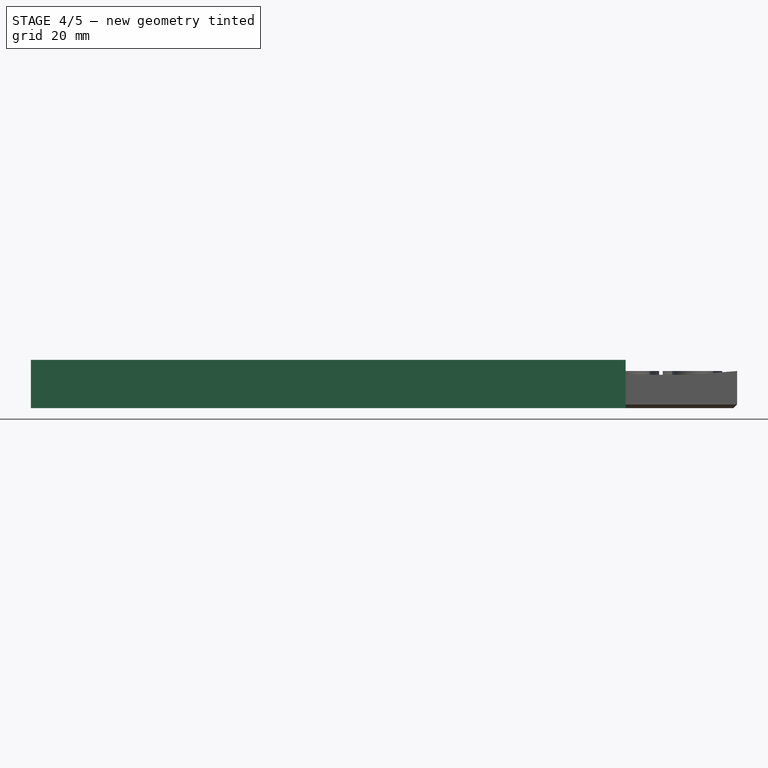
[diagram: stage 4 of 5 — front view after this stage's code; geometry added in this stage tinted green]
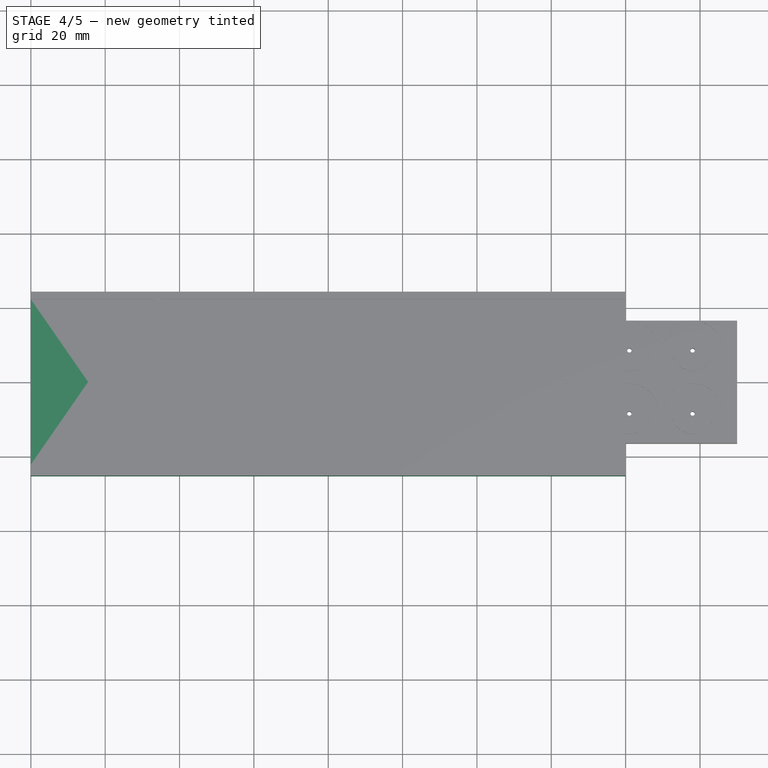
[diagram: stage 4 of 5 — top view after this stage's code; geometry added in this stage tinted green]
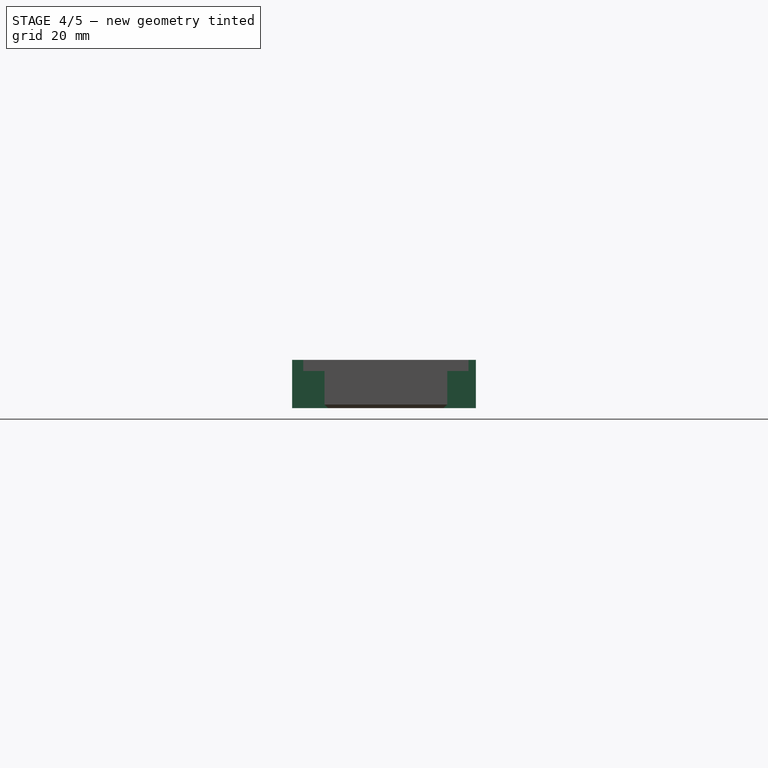
[diagram: stage 4 of 5 — right view after this stage's code; geometry added in this stage tinted green]
FEATURE [Sketcher::SketchObject] Sketch  label="ButtonsBlockSketch"
  ArcFitTolerance = 1e-06
  AttachmentSupport = -> [XY_Plane]
  FullyConstrained = true
  MakeInternals = false
  MapMode = 5
  sketch-geometry (23):
    g0: LineSegment StartX=-80 StartY=22.225 StartZ=0 EndX=-80 EndY=-22.225 EndZ=0
    g1: LineSegment StartX=-80 StartY=-22.225 StartZ=0 EndX=80 EndY=-22.225 EndZ=0
    g2: LineSegment StartX=80 StartY=-22.225 StartZ=0 EndX=80 EndY=22.225 EndZ=0
    g3: LineSegment StartX=80 StartY=22.225 StartZ=0 EndX=-80 EndY=22.225 EndZ=0
    g4: LineSegment [constr] StartX=0 StartY=0 StartZ=0 EndX=-32 EndY=0 EndZ=0
    g5: LineSegment [constr] StartX=-32 StartY=0 StartZ=0 EndX=-64 EndY=0 EndZ=0
    g6: LineSegment [constr] StartX=0 StartY=0 StartZ=0 EndX=32 EndY=0 EndZ=0
    g7: LineSegment [constr] StartX=32 StartY=0 StartZ=0 EndX=64 EndY=0 EndZ=0
    g8: Circle [constr] CenterX=-64 CenterY=0 CenterZ=0 NormalX=0 NormalY=0 NormalZ=1 AngleXU=0 Radius=12
    g9: Circle [constr] CenterX=-32 CenterY=0 CenterZ=0 NormalX=0 NormalY=0 NormalZ=1 AngleXU=0 Radius=12
    g10: Circle [constr] CenterX=0 CenterY=0 CenterZ=0 NormalX=0 NormalY=0 NormalZ=1 AngleXU=0 Radius=12
    g11: Circle [constr] CenterX=32 CenterY=0 CenterZ=0 NormalX=0 NormalY=0 NormalZ=1 AngleXU=0 Radius=12
    g12: Circle [constr] CenterX=64 CenterY=0 CenterZ=0 NormalX=0 NormalY=0 NormalZ=1 AngleXU=0 Radius=12
    g13: Circle [constr] CenterX=64 CenterY=0 CenterZ=0 NormalX=0 NormalY=0 NormalZ=1 AngleXU=0 Radius=8
    g14: Circle [constr] CenterX=32 CenterY=0 CenterZ=0 NormalX=0 NormalY=0 NormalZ=1 AngleXU=0 Radius=8
    g15: Circle [constr] CenterX=0 CenterY=0 CenterZ=0 NormalX=0 NormalY=0 NormalZ=1 AngleXU=0 Radius=8
    g16: Circle [constr] CenterX=-32 CenterY=0 CenterZ=0 NormalX=0 NormalY=0 NormalZ=1 AngleXU=0 Radius=8
    g17: Circle [constr] CenterX=-64 CenterY=0 CenterZ=0 NormalX=0 NormalY=0 NormalZ=1 AngleXU=0 Radius=8
    g18: Circle CenterX=-64 CenterY=0 CenterZ=0 NormalX=0 NormalY=0 NormalZ=1 AngleXU=0 Radius=0.6
    g19: Circle CenterX=-32 CenterY=0 CenterZ=0 NormalX=0 NormalY=0 NormalZ=1 AngleXU=0 Radius=0.6
    g20: Circle CenterX=0 CenterY=0 CenterZ=0 NormalX=0 NormalY=0 NormalZ=1 AngleXU=0 Radius=0.6
    g21: Circle CenterX=32 CenterY=0 CenterZ=0 NormalX=0 NormalY=0 NormalZ=1 AngleXU=0 Radius=0.6
    g22: Circle CenterX=64 CenterY=0 CenterZ=0 NormalX=0 NormalY=0 NormalZ=1 AngleXU=0 Radius=0.6
  constraints (53):
    c: Coincident(g0,g1)
    c: Coincident(g1,g2)
    c: Coincident(g2,g3)
    c: Coincident(g3,g0)
    c: Vertical(g0)
    c: Vertical(g2)
    c: Horizontal(g1)
    c: Horizontal(g3)
    c: Symmetric(g1,g0,g-1)
    c: DistanceX(g1,g1) = 160
    c: DistanceY(g0,g0) = 44.45
    c: Coincident(g4,g-1)
    c: PointOnObject(g4,g-1)
    c: Coincident(g5,g4)
    c: PointOnObject(g5,g-1)
    c: Coincident(g6,g4)
    c: PointOnObject(g6,g-1)
    c: Coincident(g7,g6)
    c: PointOnObject(g7,g-1)
    c: DistanceX(g5,g5) = 32
    c: Equal(g5,g4)
    c: Equal(g7,g6)
    c: Equal(g6,g4)
    c: Diameter(g8) = 24
    c: Coincident(g8,g5)
    c: Coincident(g9,g4)
    c: Coincident(g10,g4)
    c: Coincident(g11,g6)
    c: Coincident(g12,g7)
    c: Coincident(g13,g7)
    c: Coincident(g14,g6)
    c: Coincident(g15,g4)
    c: Coincident(g16,g4)
    c: Coincident(g17,g5)
    c: Diameter(g15) = 16
    c: Equal(g16,g17)
    c: Equal(g17,g15)
    c: Equal(g15,g14)
    c: Equal(g14,g13)
    c: Equal(g8,g9)
    c: Equal(g9,g10)
    c: Equal(g10,g11)
    c: Equal(g11,g12)
    c: Coincident(g18,g5)
    c: Coincident(g19,g4)
    c: Coincident(g20,g4)
    c: Coincident(g21,g6)
    c: Coincident(g22,g7)
    c: Equal(g22,g21)
    c: Equal(g21,g20)
    c: Equal(g20,g19)
    c: Equal(g19,g18)
    c: Diameter(g20) = 1.2
FEATURE [PartDesign::Pad] Pad  label="ButtonsBlockPad"
  Direction = (0,0,1)
  Length = 10
  Length2 = 10
  Profile = -> Sketch
  ReferenceAxis = -> Sketch [N_Axis]
  Refine = true
  Suppressed = false
  Type = 0
FEATURE [Sketcher::SketchObject] Sketch001  label="ButtonSideSketch"
  ArcFitTolerance = 1e-06
  AttachmentSupport = -> [XY_Plane]
  ExternalGeometry = -> [Pad]
  FullyConstrained = true
  MakeInternals = false
  MapMode = 5
  sketch-geometry (8):
    g0: LineSegment StartX=-80 StartY=-22.225 StartZ=0 EndX=-80 EndY=-25.225 EndZ=0
    g1: LineSegment StartX=-80 StartY=-25.225 StartZ=0 EndX=80 EndY=-25.225 EndZ=0
    g2: LineSegment StartX=80 StartY=-25.225 StartZ=0 EndX=80 EndY=-22.225 EndZ=0
    g3: LineSegment StartX=80 StartY=-22.225 StartZ=0 EndX=-80 EndY=-22.225 EndZ=0
    g4: LineSegment StartX=80 StartY=22.225 StartZ=0 EndX=80 EndY=24.225 EndZ=0
    g5: LineSegment StartX=80 StartY=24.225 StartZ=0 EndX=-80 EndY=24.225 EndZ=0
    g6: LineSegment StartX=-80 StartY=24.225 StartZ=0 EndX=-80 EndY=22.225 EndZ=0
    g7: LineSegment StartX=-80 StartY=22.225 StartZ=0 EndX=80 EndY=22.225 EndZ=0
  constraints (22):
    c: Coincident(g0,g1)
    c: Coincident(g1,g2)
    c: Coincident(g2,g3)
    c: Coincident(g3,g0)
    c: Vertical(g0)
    c: Vertical(g2)
    c: Horizontal(g1)
    c: Horizontal(g3)
    c: Coincident(g0,g-4)
    c: Coincident(g4,g5)
    c: Coincident(g5,g6)
    c: Coincident(g6,g7)
    c: Coincident(g7,g4)
    c: Vertical(g4)
    c: Vertical(g6)
    c: Horizontal(g5)
    c: Horizontal(g7)
    c: Coincident(g4,g-3)
    c: Vertical(g5,g-3)
    c: DistanceY(g6,g6) = 2
    c: DistanceY(g0,g0) = 3
    c: Vertical(g-4,g1)
FEATURE [PartDesign::Pad] Pad001  label="ButtonsSidePad"
  BaseFeature = -> Pad
  Direction = (0,0,1)
  Length = 13
  Length2 = 10
  Profile = -> Sketch001
  ReferenceAxis = -> Sketch001 [N_Axis]
  Refine = true
  Suppressed = false
  Type = 0
FEATURE [PartDesign::Body] Body  label="Buttons"
  AllowCompound = false
  Group = -> [Sketch,Pad,Sketch001,Pad001,Sketch002,Pad002,Sketch003,Pad003,Sketch010,Pocket002]
  Origin = -> Origin
  Placement = pos=(-100,-100,0) rot=(0,0,1;0rad)
  Tip = -> Pocket002
FEATURE [Sketcher::SketchObject] Sketch011  label="OledClearanceSketch"
  ArcFitTolerance = 1e-06
  AttachmentSupport = -> [Pad005]
  ExternalGeometry = -> [Pad005]
  FullyConstrained = true
  MakeInternals = false
  MapMode = 5
  Placement = pos=(0,0,0) rot=(1,0,0;3.14159rad)
  sketch-geometry (2):
    g0: Circle CenterX=25 CenterY=0 CenterZ=0 NormalX=0 NormalY=0 NormalZ=1 AngleXU=0 Radius=12
    g1: Circle CenterX=25 CenterY=0 CenterZ=0 NormalX=0 NormalY=0 NormalZ=1 AngleXU=0 Radius=8
  constraints (4):
    c: Diameter(g0) = 24
    c: Coincident(g0,g-3)
    c: Diameter(g1) = 16
    c: Coincident(g1,g0)
FEATURE [PartDesign::Pocket] Pocket003  label="OledClearancePocket"
  BaseFeature = -> Pad005
  Direction = (0,0,1)
  Length = 1
  Length2 = 5
  Profile = -> Sketch011
  ReferenceAxis = -> Sketch011 [N_Axis]
  Refine = true
  Suppressed = false
  Type = 0
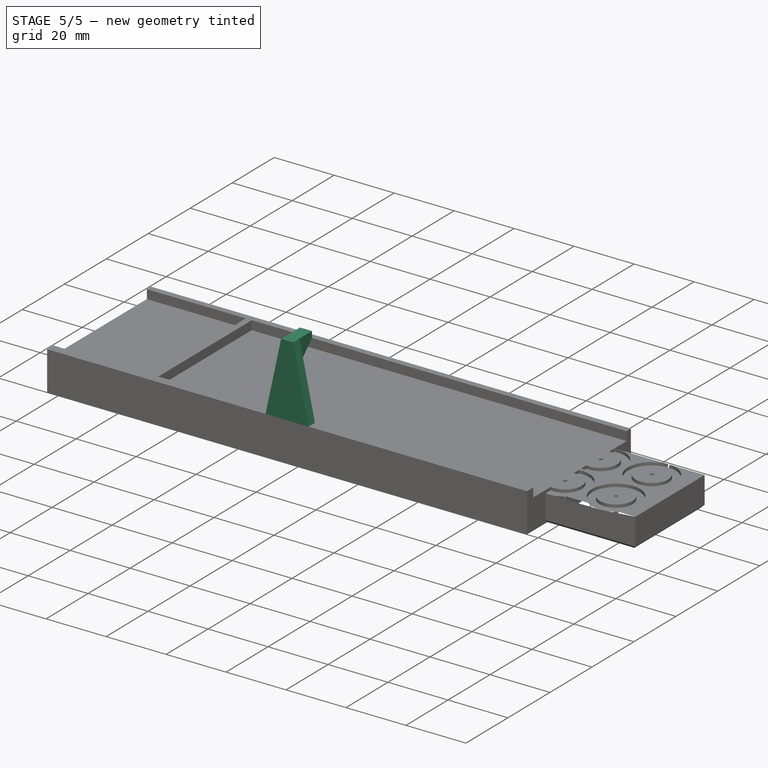
[diagram: stage 5 of 5 — iso view after this stage's code; geometry added in this stage tinted green]
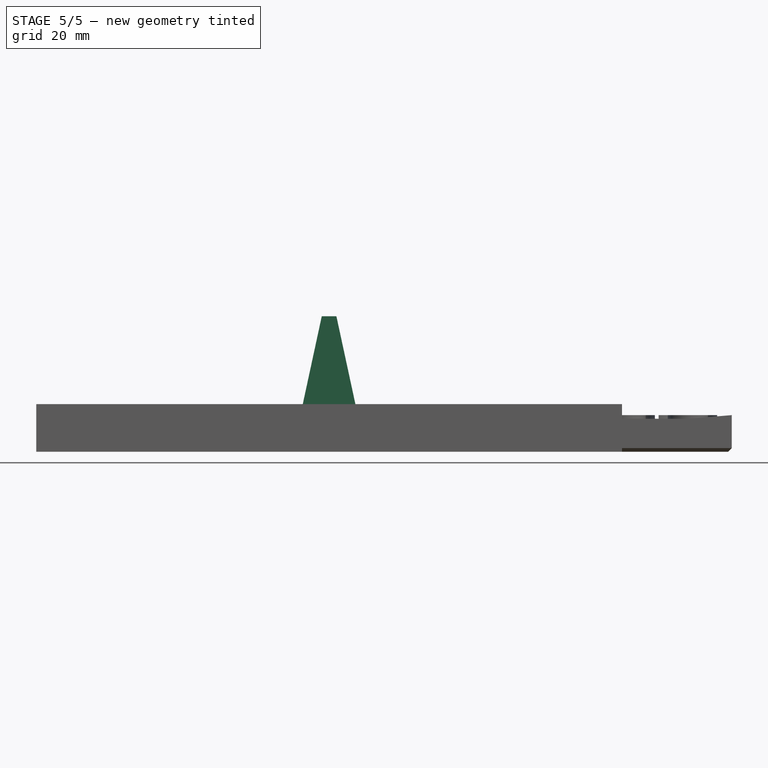
[diagram: stage 5 of 5 — front view after this stage's code; geometry added in this stage tinted green]
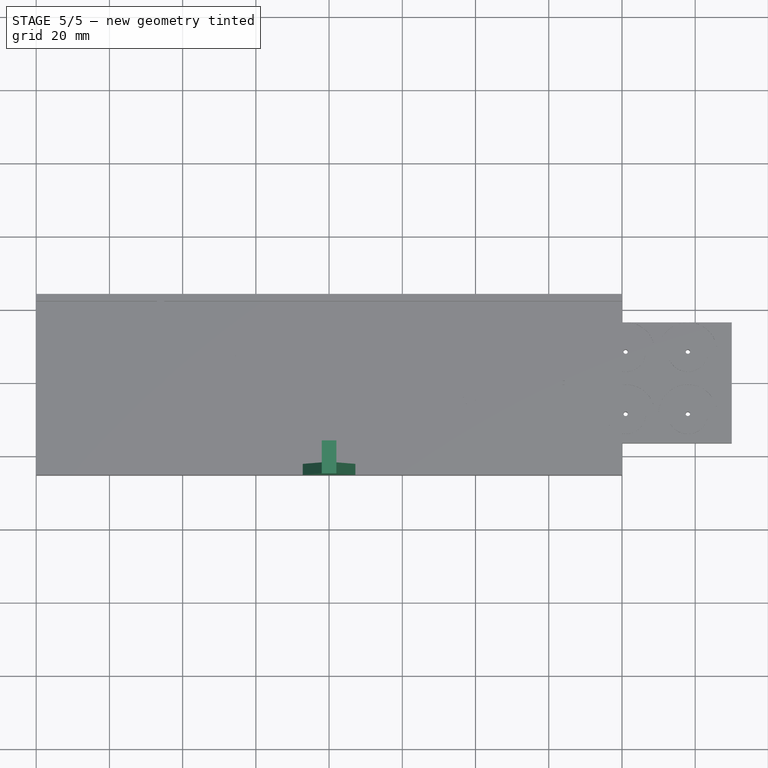
[diagram: stage 5 of 5 — top view after this stage's code; geometry added in this stage tinted green]
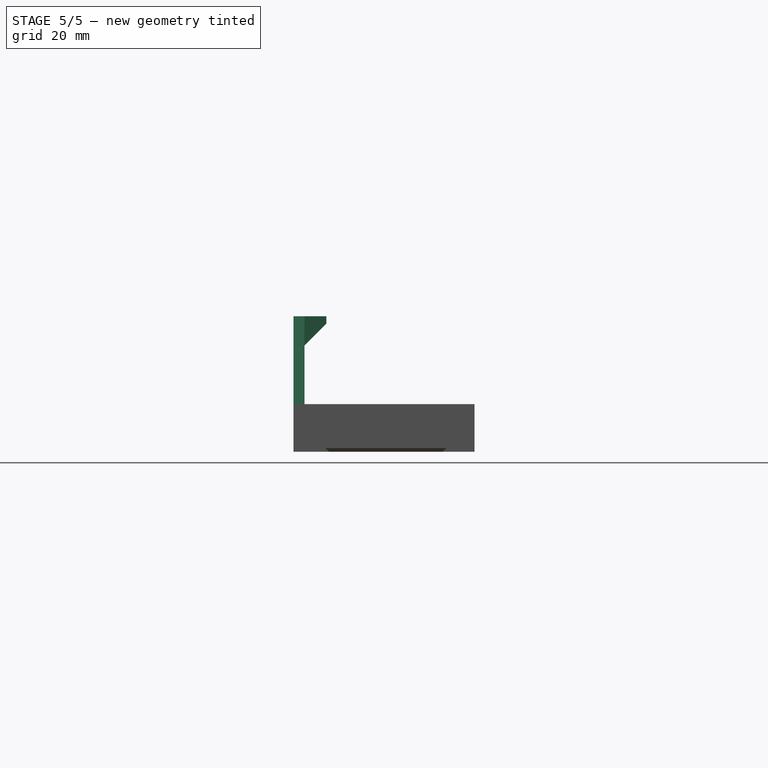
[diagram: stage 5 of 5 — right view after this stage's code; geometry added in this stage tinted green]
FEATURE [Sketcher::SketchObject] Sketch002  label="ButtonCenteringsSketch"
  ArcFitTolerance = 1e-06
  AttachmentSupport = -> [Pad001]
  FullyConstrained = true
  MakeInternals = false
  MapMode = 5
  Placement = pos=(0,-25.225,0) rot=(1,0,0;1.5708rad)
  sketch-geometry (4):
    g0: LineSegment StartX=-10 StartY=0 StartZ=0 EndX=10 EndY=-3.574e-13 EndZ=0
    g1: LineSegment StartX=2 StartY=37 StartZ=0 EndX=-2 EndY=37 EndZ=0
    g2: LineSegment StartX=10 StartY=-3.574e-13 StartZ=0 EndX=2 EndY=37 EndZ=0
    g3: LineSegment StartX=-2 StartY=37 StartZ=0 EndX=-10 EndY=0 EndZ=0
  constraints (11):
    c: PointOnObject(g0,g-1)
    c: Symmetric(g0,g0,g-1)
    c: DistanceX(g0,g0) = 20
    c: Horizontal(g1)
    c: Coincident(g2,g0)
    c: Coincident(g2,g1)
    c: Coincident(g3,g1)
    c: Coincident(g3,g0)
    c: Equal(g2,g3)
    c: DistanceY(g2,g2) = 37
    c: DistanceX(g1,g1) = 4
FEATURE [PartDesign::Pad] Pad002  label="ButtonCenteringsPad"
  BaseFeature = -> Pad001
  Direction = (0,-1,2e-16)
  Length = 3
  Length2 = 10
  Profile = -> Sketch002
  ReferenceAxis = -> Sketch002 [N_Axis]
  Refine = true
  Reversed = true
  Suppressed = false
  Type = 0
FEATURE [Sketcher::SketchObject] Sketch003  label="ButtonsNotchSketch"
  ArcFitTolerance = 1e-06
  AttachmentSupport = -> [YZ_Plane]
  ExternalGeometry = -> [Pad002]
  FullyConstrained = true
  MakeInternals = false
  MapMode = 5
  Placement = pos=(0,0,0) rot=(0.57735,0.57735,0.57735;2.0944rad)
  sketch-geometry (4):
    g0: LineSegment StartX=-22.225 StartY=37 StartZ=0 EndX=-16.225 EndY=37 EndZ=0
    g1: LineSegment StartX=-22.225 StartY=37 StartZ=0 EndX=-22.225 EndY=29 EndZ=0
    g2: LineSegment StartX=-16.225 StartY=37 StartZ=0 EndX=-16.225 EndY=35 EndZ=0
    g3: LineSegment StartX=-16.225 StartY=35 StartZ=0 EndX=-22.225 EndY=29 EndZ=0
  constraints (11):
    c: Coincident(g0,g-3)
    c: Horizontal(g0)
    c: Coincident(g1,g0)
    c: Vertical(g1)
    c: Coincident(g2,g0)
    c: Vertical(g2)
    c: Coincident(g3,g2)
    c: Coincident(g3,g1)
    c: DistanceY(g1,g1) = 8
    c: DistanceX(g0,g0) = 6
    c: Angle(g3,g1) = 0.785398
FEATURE [PartDesign::Pad] Pad003  label="ButtonsNotchPad"
  BaseFeature = -> Pad002
  Direction = (1,0,0)
  Length = 4
  Length2 = 10
  Midplane = true
  Profile = -> Sketch003
  ReferenceAxis = -> Sketch003 [N_Axis]
  Refine = true
  Suppressed = false
  Type = 0
FEATURE [Sketcher::SketchObject] Sketch010  label="ButtonsClearanceSketch"
  ArcFitTolerance = 1e-06
  AttachmentSupport = -> [Pad003]
  ExternalGeometry = -> [Pad003]
  FullyConstrained = true
  MakeInternals = false
  MapMode = 5
  Placement = pos=(0,0,0) rot=(1,0,0;3.14159rad)
  sketch-geometry (10):
    g0: Circle CenterX=64 CenterY=0 CenterZ=0 NormalX=0 NormalY=0 NormalZ=1 AngleXU=0 Radius=12
    g1: Circle CenterX=32 CenterY=0 CenterZ=0 NormalX=0 NormalY=0 NormalZ=1 AngleXU=0 Radius=12
    g2: Circle CenterX=0 CenterY=0 CenterZ=0 NormalX=0 NormalY=0 NormalZ=1 AngleXU=0 Radius=12
    g3: Circle CenterX=-32 CenterY=0 CenterZ=0 NormalX=0 NormalY=0 NormalZ=1 AngleXU=0 Radius=12
    g4: Circle CenterX=-64 CenterY=0 CenterZ=0 NormalX=0 NormalY=0 NormalZ=1 AngleXU=0 Radius=12
    g5: Circle CenterX=64 CenterY=0 CenterZ=0 NormalX=0 NormalY=0 NormalZ=1 AngleXU=0 Radius=8
    g6: Circle CenterX=32 CenterY=0 CenterZ=0 NormalX=0 NormalY=0 NormalZ=1 AngleXU=0 Radius=8
    g7: Circle CenterX=0 CenterY=0 CenterZ=0 NormalX=0 NormalY=0 NormalZ=1 AngleXU=0 Radius=8
    g8: Circle CenterX=-32 CenterY=0 CenterZ=0 NormalX=0 NormalY=0 NormalZ=1 AngleXU=0 Radius=8
    g9: Circle CenterX=-64 CenterY=0 CenterZ=0 NormalX=0 NormalY=0 NormalZ=1 AngleXU=0 Radius=8
  constraints (20):
    c: Diameter(g0) = 24
    c: Coincident(g0,g-7)
    c: Coincident(g1,g-6)
    c: Coincident(g2,g-1)
    c: Coincident(g3,g-4)
    c: Coincident(g4,g-3)
    c: Equal(g4,g3)
    c: Equal(g3,g2)
    c: Equal(g2,g1)
    c: Equal(g1,g0)
    c: Diameter(g5) = 16
    c: Coincident(g5,g0)
    c: Coincident(g6,g1)
    c: Coincident(g7,g2)
    c: Coincident(g8,g3)
    c: Coincident(g9,g4)
    c: Equal(g9,g8)
    c: Equal(g8,g7)
    c: Equal(g7,g6)
    c: Equal(g6,g5)
FEATURE [PartDesign::Pocket] Pocket002  label="ButtonsClearancePocket"
  BaseFeature = -> Pad003
  Direction = (0,0,1)
  Length = 1
  Length2 = 5
  Profile = -> Sketch010
  ReferenceAxis = -> Sketch010 [N_Axis]
  Refine = true
  Suppressed = false
  Type = 0
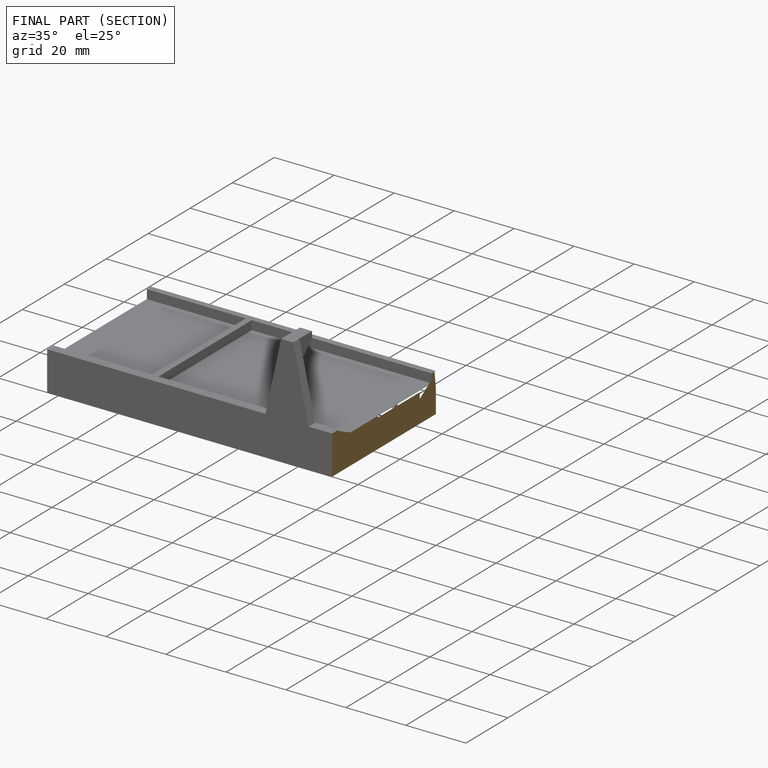
[diagram: finished part — half-section view (interior)]
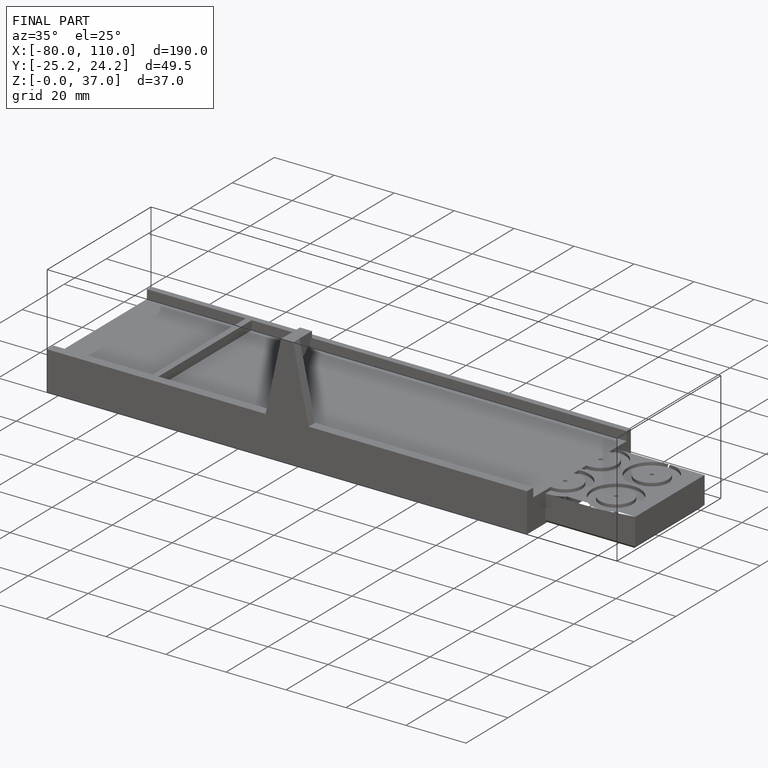
[diagram: finished part — iso view with bounding-box wireframe]
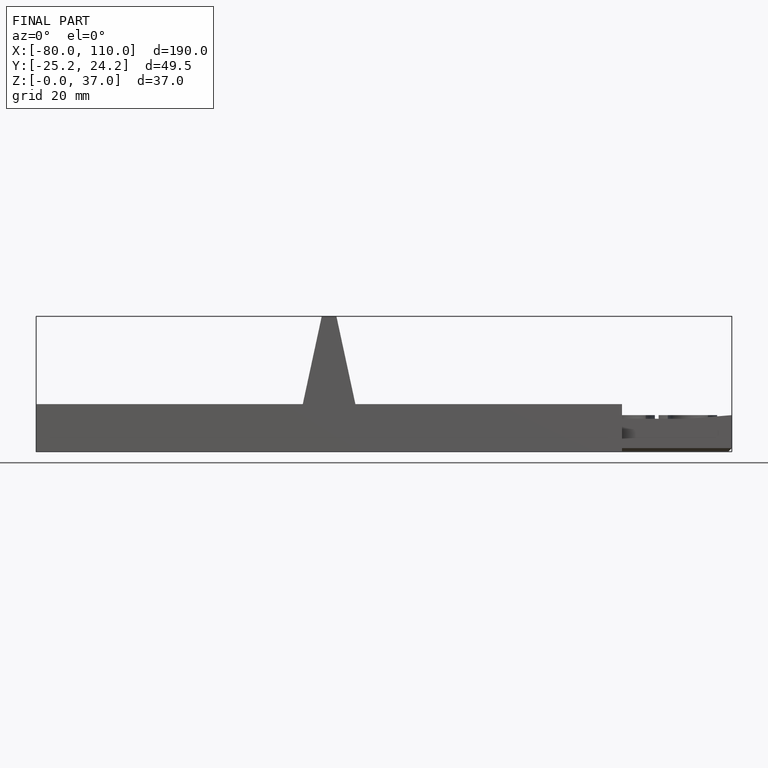
[diagram: finished part — front view with bounding-box wireframe]
